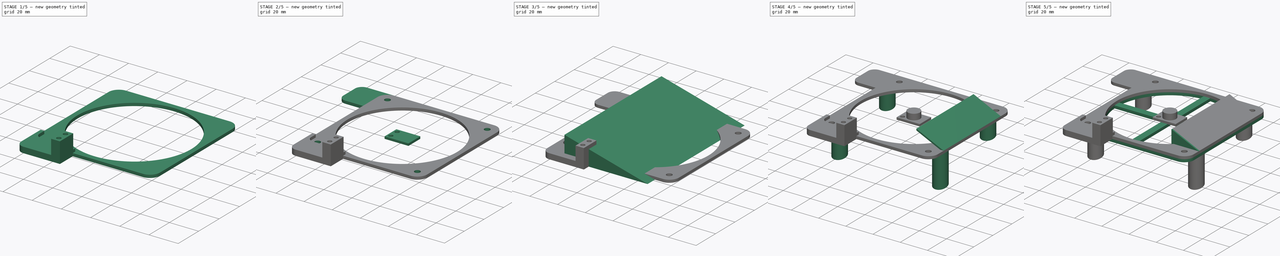
[diagram: build sequence overview — one tinted view per stage of 5, left to right]
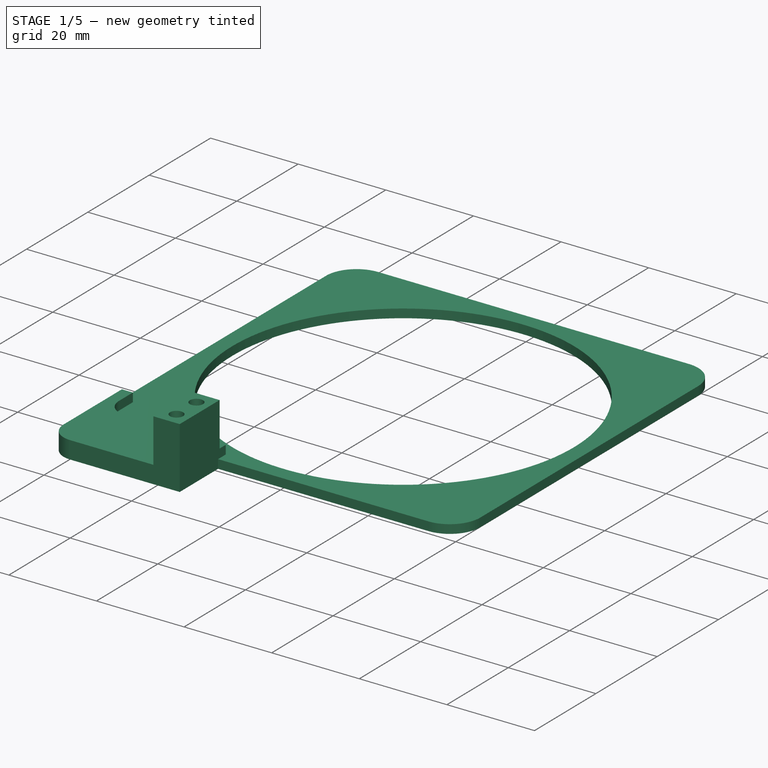
[diagram: stage 1 of 5 — iso view after this stage's code; geometry added in this stage tinted green]
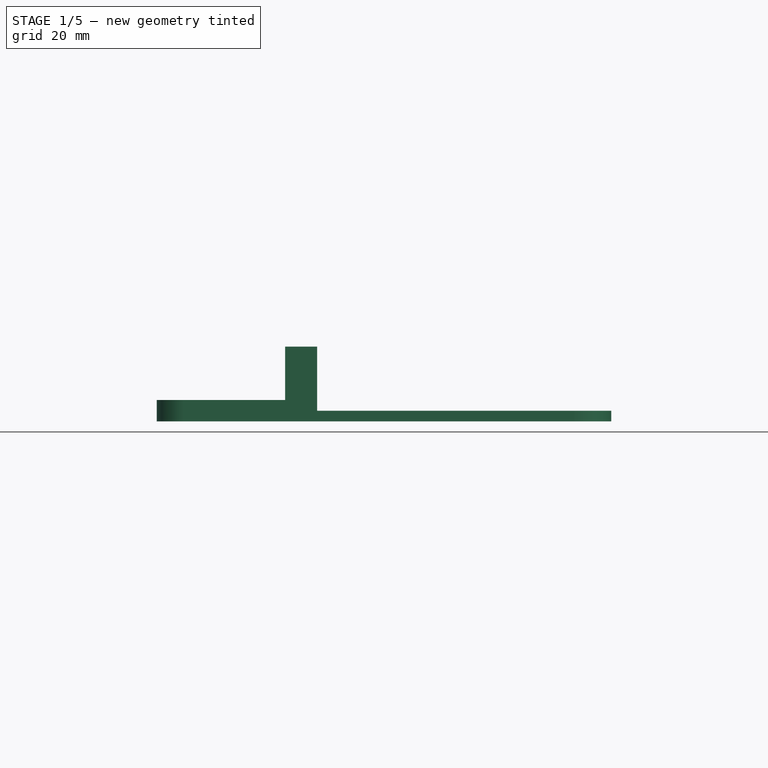
[diagram: stage 1 of 5 — front view after this stage's code; geometry added in this stage tinted green]
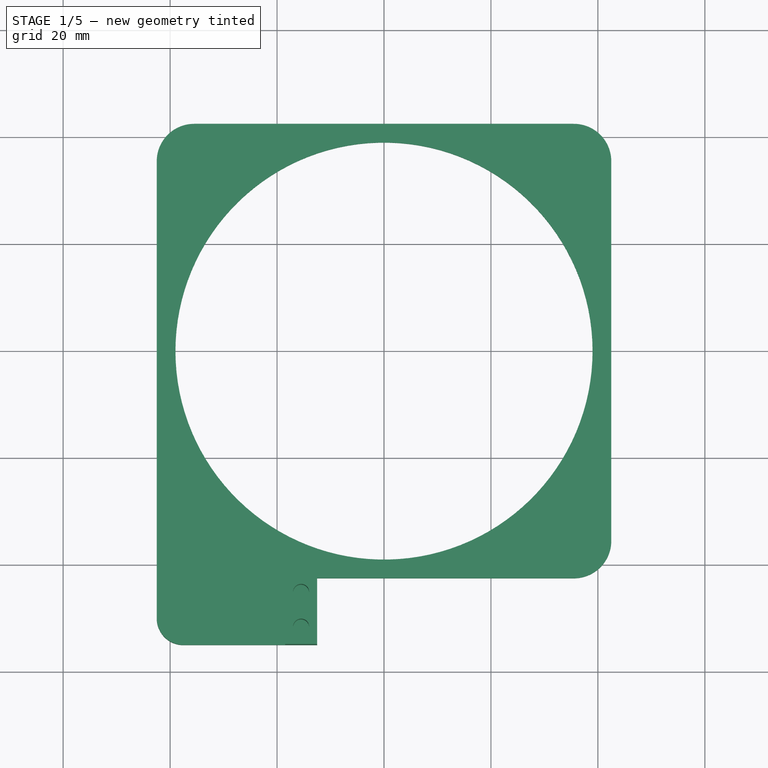
[diagram: stage 1 of 5 — top view after this stage's code; geometry added in this stage tinted green]
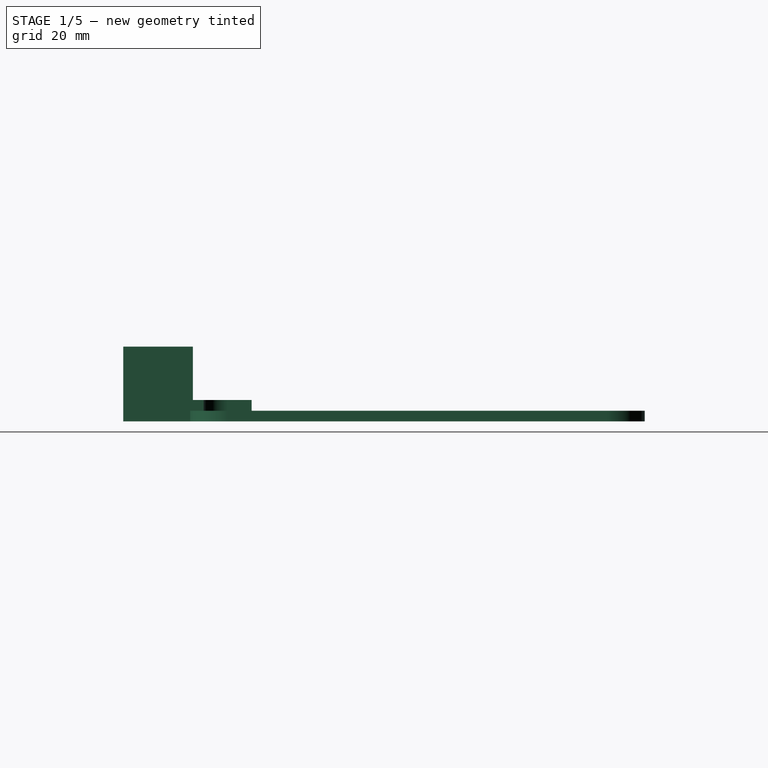
[diagram: stage 1 of 5 — right view after this stage's code; geometry added in this stage tinted green]
FCSTD DOCUMENT  (FreeCAD 1.0R39109 (Git))
Label: Fan8-slant
License: All rights reserved
LicenseURL: http://en.wikipedia.org/wiki/All_rights_reserved
objects: Sketcher::SketchObject×14, PartDesign::Pad×13, PartDesign::Body×6, PartDesign::Boolean×1, PartDesign::AdditiveCylinder×1, PartDesign::Pocket×1, PartDesign::LinearPattern×1
note: 83 computed .brp shape members not serialized (recipe doc carries the construction recipe); baked Part::Feature solids carry a one-line shape summary decoded from their .brp

FEATURE [Sketcher::SketchObject] Sketch002
  ArcFitTolerance = 1e-06
  AttachmentSupport = -> [XZ_Plane001]
  FullyConstrained = true
  MakeInternals = false
  MapMode = 5
  Placement = pos=(0,0,0) rot=(1,0,0;1.5708rad)
  sketch-geometry (4):
    g0: LineSegment StartX=22.5 StartY=11.3262 StartZ=0 EndX=42.5 EndY=2 EndZ=0
    g1: LineSegment StartX=22.5 StartY=10.1262 StartZ=0 EndX=42.5 EndY=0.8 EndZ=0
    g2: LineSegment StartX=22.5 StartY=11.3262 StartZ=0 EndX=22.5 EndY=10.1262 EndZ=0
    g3: LineSegment StartX=42.5 StartY=0.8 StartZ=0 EndX=42.5 EndY=2 EndZ=0
  constraints (12):
    c: Parallel(g0,g1)
    c: DistanceY(g1,g0) = 1.2
    c: DistanceX(g-1,g0) = 42.5
    c: Coincident(g2,g0)
    c: Coincident(g2,g1)
    c: Vertical(g2)
    c: Coincident(g3,g0)
    c: DistanceX(g0,g0) = 20
    c: Coincident(g1,g3)
    c: Vertical(g3)
    c: DistanceY(g-1,g0) = 2
    c: Angle(g0,g-1) = 0.436332
FEATURE [Sketcher::SketchObject] Sketch003
  ArcFitTolerance = 1e-06
  AttachmentSupport = -> [XY_Plane001]
  FullyConstrained = true
  MakeInternals = false
  MapMode = 5
  sketch-geometry (12):
    g0: LineSegment [constr] StartX=-35.5 StartY=35.5 StartZ=0 EndX=-35.5 EndY=-35.5 EndZ=0
    g1: LineSegment [constr] StartX=-35.5 StartY=-35.5 StartZ=0 EndX=35.5 EndY=-35.5 EndZ=0
    g2: LineSegment [constr] StartX=35.5 StartY=-35.5 StartZ=0 EndX=35.5 EndY=35.5 EndZ=0
    g3: LineSegment [constr] StartX=35.5 StartY=35.5 StartZ=0 EndX=-35.5 EndY=35.5 EndZ=0
    g4: LineSegment StartX=-42.5 StartY=35.5 StartZ=0 EndX=-42.5 EndY=-42.5 EndZ=0
    g5: LineSegment StartX=-42.5 StartY=-42.5 StartZ=0 EndX=35.5 EndY=-42.5 EndZ=0
    g6: LineSegment StartX=42.5 StartY=-35.5 StartZ=0 EndX=42.5 EndY=35.5 EndZ=0
    g7: LineSegment StartX=35.5 StartY=42.5 StartZ=0 EndX=-35.5 EndY=42.5 EndZ=0
    g8: ArcOfCircle CenterX=-35.5 CenterY=35.5 CenterZ=0 NormalX=0 NormalY=0 NormalZ=1 AngleXU=0 Radius=7 StartAngle=1.5708 EndAngle=3.14159
    g9: ArcOfCircle CenterX=35.5 CenterY=35.5 CenterZ=0 NormalX=0 NormalY=0 NormalZ=1 AngleXU=0 Radius=7 StartAngle=-3.9551e-12 EndAngle=1.5708
    g10: ArcOfCircle CenterX=35.5 CenterY=-35.5 CenterZ=0 NormalX=0 NormalY=0 NormalZ=1 AngleXU=0 Radius=7 StartAngle=4.71239 EndAngle=6.28319
    g11: Circle CenterX=0 CenterY=0 CenterZ=0 NormalX=0 NormalY=0 NormalZ=1 AngleXU=0 Radius=39
  constraints (28):
    c: Coincident(g0,g1)
    c: Coincident(g1,g2)
    c: Coincident(g2,g3)
    c: Coincident(g3,g0)
    c: Vertical(g0)
    c: Vertical(g2)
    c: Horizontal(g1)
    c: Horizontal(g3)
    c: DistanceX(g3,g3) = 71
    c: DistanceY(g2,g2) = 71
    c: Symmetric(g2,g0,g-1)
    c: Vertical(g4)
    c: Vertical(g6)
    c: Horizontal(g5)
    c: Horizontal(g7)
    c: Coincident(g8,g0)
    c: Coincident(g9,g2)
    c: Coincident(g10,g1)
    c: Tangent(g9,g7) = -1.5708
    c: Tangent(g9,g6) = -1.5708
    c: Tangent(g10,g6) = -1.5708
    c: Tangent(g8,g7) = -1.5708
    c: Tangent(g8,g4) = -1.5708
    c: Tangent(g10,g5) = -1.5708
    c: Radius(g9) = 7
    c: Coincident(g11,g-1)
    c: Radius(g11) = 39
    c: Coincident(g4,g5)
FEATURE [PartDesign::Pad] Pad002
  Direction = (0,0,1)
  Length = 2
  Length2 = 10
  Profile = -> Sketch003
  ReferenceAxis = -> Sketch003 [N_Axis]
  Suppressed = false
  Type = 0
FEATURE [PartDesign::Body] Body004  label="Sensor"
  AllowCompound = false
  Group = -> [Sketch008,Pad008,Cylinder]
  Origin = -> Origin004
  Placement = pos=(-9.5,-48.5,16) rot=(0,0,1;0rad)
  Tip = -> Cylinder
FEATURE [Sketcher::SketchObject] Sketch009
  ArcFitTolerance = 1e-06
  AttachmentSupport = -> [XY_Plane001]
  FullyConstrained = true
  MakeInternals = false
  MapMode = 5
  sketch-geometry (8):
    g0: LineSegment StartX=-42.5 StartY=-31 StartZ=0 EndX=-42.5 EndY=-50 EndZ=0
    g1: LineSegment StartX=-37.5 StartY=-55 StartZ=0 EndX=-12.5 EndY=-55 EndZ=0
    g2: LineSegment StartX=-12.5 StartY=-55 StartZ=0 EndX=-12.5 EndY=-40 EndZ=0
    g3: LineSegment StartX=-12.5 StartY=-40 StartZ=0 EndX=-35.5 EndY=-40 EndZ=0
    g4: ArcOfCircle CenterX=-37.5 CenterY=-50 CenterZ=0 NormalX=0 NormalY=0 NormalZ=1 AngleXU=0 Radius=5 StartAngle=3.14159 EndAngle=4.71239
    g5: ArcOfCircle CenterX=-35.5 CenterY=-35.5 CenterZ=0 NormalX=0 NormalY=0 NormalZ=1 AngleXU=0 Radius=4.5 StartAngle=3.14159 EndAngle=4.71239
    g6: LineSegment StartX=-42.5 StartY=-31 StartZ=0 EndX=-40 EndY=-31 EndZ=0
    g7: LineSegment StartX=-40 StartY=-31 StartZ=0 EndX=-40 EndY=-35.5 EndZ=0
  constraints (22):
    c: Coincident(g1,g2)
    c: Coincident(g2,g3)
    c: Vertical(g0)
    c: Vertical(g2)
    c: Horizontal(g1)
    c: Horizontal(g3)
    c: DistanceX(g0) = -42.5
    c: DistanceX(g0,g1) = 30
    c: DistanceY(g2,g2) = 15
    c: Radius(g4) = 5
    c: Tangent(g4,g1) = -1.5708
    c: Tangent(g4,g0) = -1.5708
    c: DistanceY(g2,g-1) = 40
    c: Coincident(g6,g0)
    c: Horizontal(g6)
    c: Coincident(g7,g6)
    c: Vertical(g7)
    c: Tangent(g3,g5) = 1.5708
    c: Tangent(g7,g5) = -1.5708
    c: DistanceX(g6,g6) = 2.5
    c: Radius(g5) = 4.5
    c: DistanceY(g7,g7) = 4.5
FEATURE [PartDesign::Pad] Pad009
  BaseFeature = -> Pad002
  Direction = (0,0,1)
  Length = 4
  Length2 = 10
  Profile = -> Sketch009
  ReferenceAxis = -> Sketch009 [N_Axis]
  Suppressed = false
  Type = 0
FEATURE [PartDesign::Body] Body005  label="test"
  AllowCompound = false
  Group = -> [Sketch010,Pad010]
  Origin = -> Origin005
  Placement = pos=(0,0,2) rot=(0,0,1;0rad)
  Tip = -> Pad010
FEATURE [Sketcher::SketchObject] Sketch011
  ArcFitTolerance = 1e-06
  AttachmentOffset = pos=(0,0,4) rot=(0,0,1;0rad)
  AttachmentSupport = -> [XY_Plane001]
  FullyConstrained = true
  MakeInternals = false
  MapMode = 5
  Placement = pos=(0,0,4) rot=(0,0,1;0rad)
  sketch-geometry (8):
    g0: LineSegment StartX=-12.5 StartY=-42 StartZ=0 EndX=-18.5 EndY=-42 EndZ=0
    g1: LineSegment StartX=-18.5 StartY=-42 StartZ=0 EndX=-18.5 EndY=-55 EndZ=0
    g2: LineSegment StartX=-18.5 StartY=-55 StartZ=0 EndX=-12.5 EndY=-55 EndZ=0
    g3: LineSegment StartX=-12.5 StartY=-55 StartZ=0 EndX=-12.5 EndY=-42 EndZ=0
    g4: LineSegment [constr] StartX=-15.5 StartY=-45.25 StartZ=0 EndX=-15.5 EndY=-51.75 EndZ=0
    g5: GeomPoint [constr] X=-15.5 Y=-48.5 Z=0
    g6: Circle CenterX=-15.5 CenterY=-45.25 CenterZ=0 NormalX=0 NormalY=0 NormalZ=1 AngleXU=0 Radius=1.5
    g7: Circle CenterX=-15.5 CenterY=-51.75 CenterZ=0 NormalX=0 NormalY=0 NormalZ=1 AngleXU=0 Radius=1.5
  constraints (20):
    c: Coincident(g0,g1)
    c: Coincident(g1,g2)
    c: Coincident(g2,g3)
    c: Coincident(g3,g0)
    c: Horizontal(g0)
    c: Horizontal(g2)
    c: Vertical(g1)
    c: Vertical(g3)
    c: DistanceX(g0,g0) = 6
    c: DistanceY(g1,g1) = 13
    c: DistanceX(g0) = -12.5
    c: DistanceY(g0) = -42
    c: Vertical(g4)
    c: Symmetric(g4,g4,g5)
    c: Symmetric(g0,g1,g5)
    c: DistanceY(g4,g4) = 6.5
    c: Coincident(g6,g4)
    c: Coincident(g7,g4)
    c: Equal(g7,g6)
    c: Diameter(g7) = 3
FEATURE [PartDesign::Pad] Pad011
  BaseFeature = -> Pad009
  Direction = (0,0,1)
  Length = 10
  Length2 = 10
  Profile = -> Sketch011
  ReferenceAxis = -> Sketch011 [N_Axis]
  Suppressed = false
  Type = 0
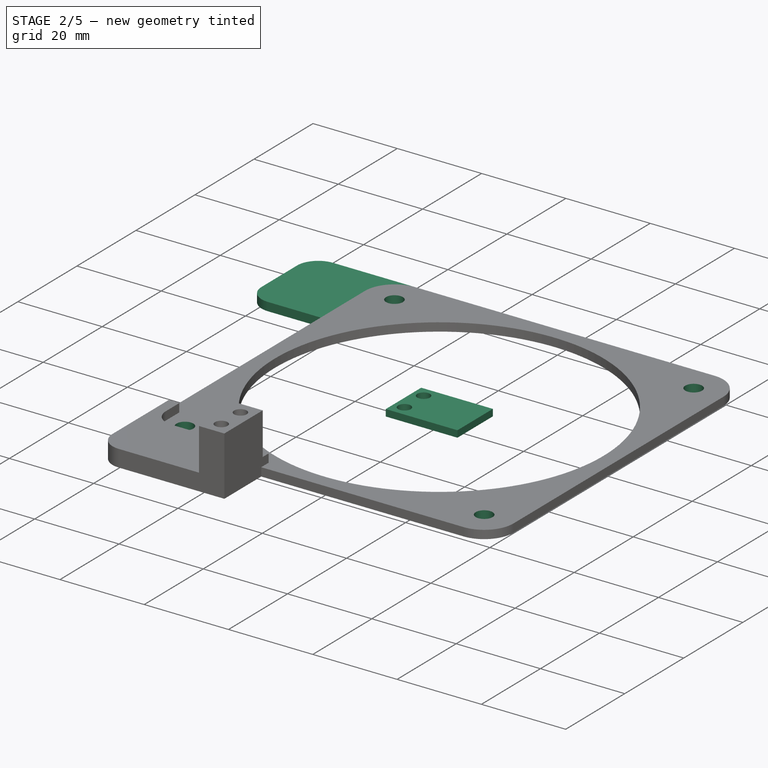
[diagram: stage 2 of 5 — iso view after this stage's code; geometry added in this stage tinted green]
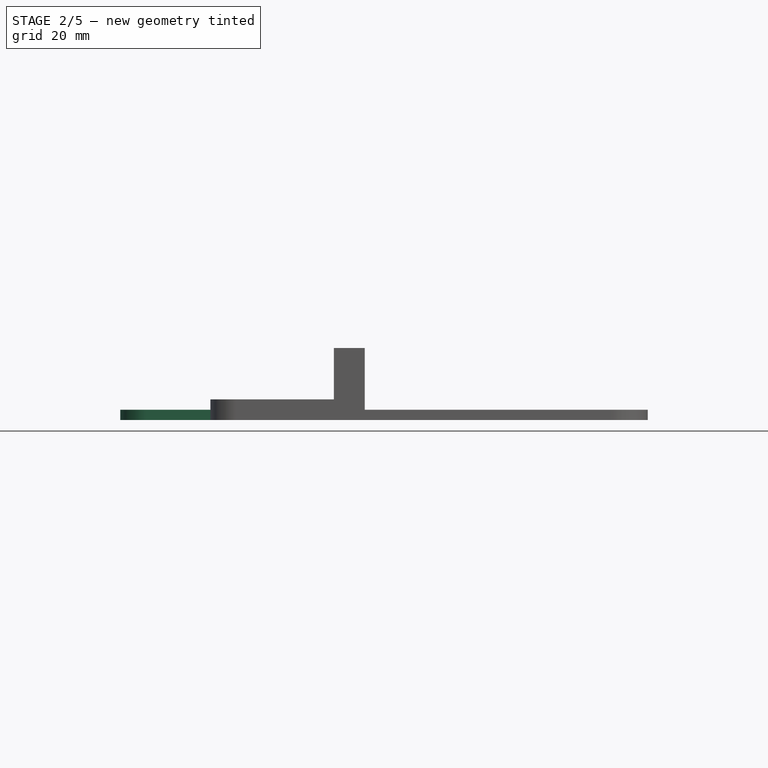
[diagram: stage 2 of 5 — front view after this stage's code; geometry added in this stage tinted green]
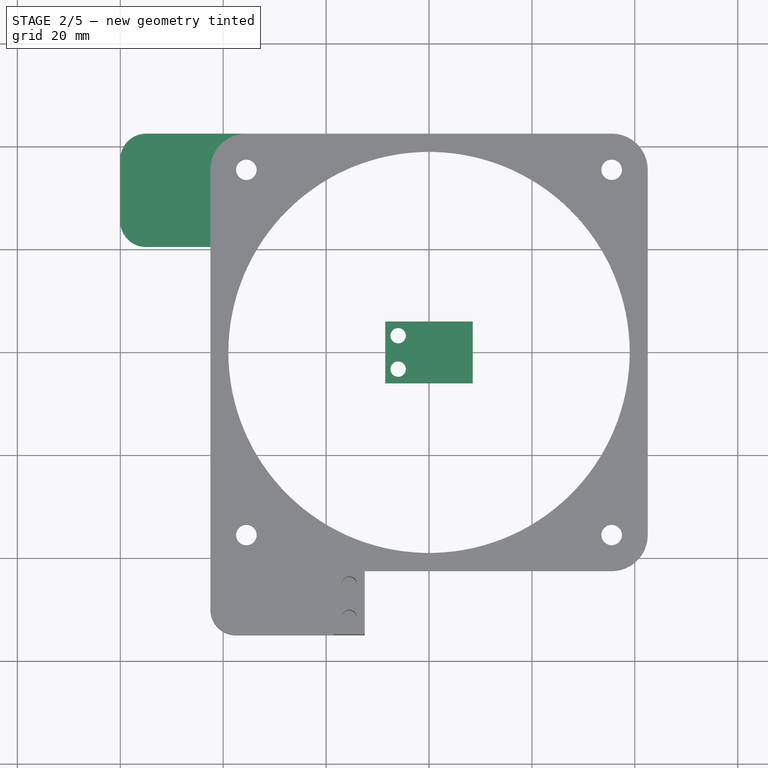
[diagram: stage 2 of 5 — top view after this stage's code; geometry added in this stage tinted green]
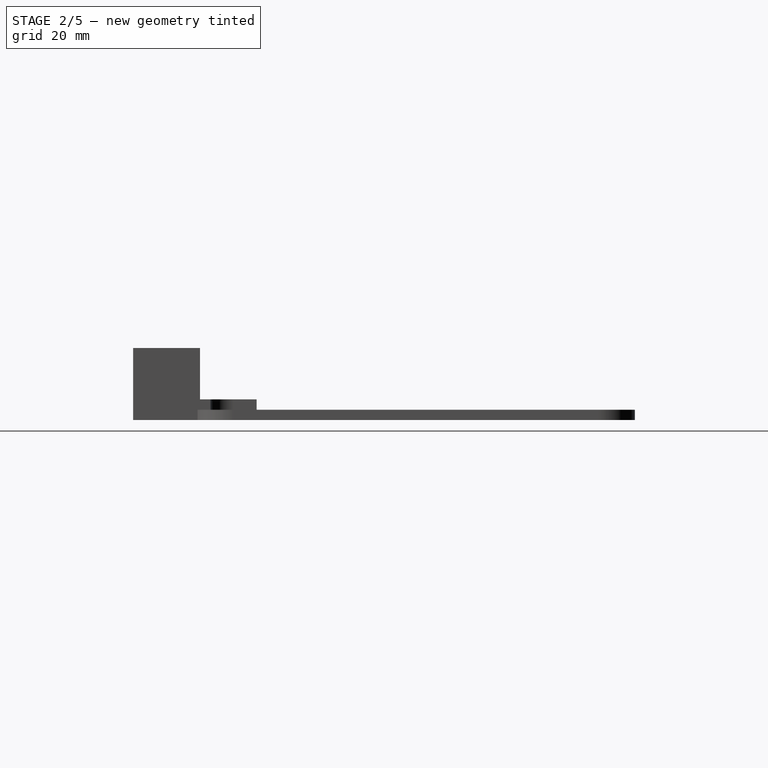
[diagram: stage 2 of 5 — right view after this stage's code; geometry added in this stage tinted green]
FEATURE [PartDesign::Body] Body
  AllowCompound = false
  Group = -> [Sketch,Pad,Sketch001,Pad001,Boolean]
  Origin = -> Origin
  Placement = pos=(0,0,-4) rot=(0,0,1;1.5708rad)
  Tip = -> Boolean
FEATURE [Sketcher::SketchObject] Sketch008
  ArcFitTolerance = 1e-06
  AttachmentSupport = -> [XY_Plane004]
  FullyConstrained = true
  MakeInternals = false
  MapMode = 5
  sketch-geometry (10):
    g0: LineSegment StartX=-8.5 StartY=6 StartZ=0 EndX=-8.5 EndY=-6 EndZ=0
    g1: LineSegment StartX=-8.5 StartY=-6 StartZ=0 EndX=8.5 EndY=-6 EndZ=0
    g2: LineSegment StartX=8.5 StartY=-6 StartZ=0 EndX=8.5 EndY=6 EndZ=0
    g3: LineSegment StartX=8.5 StartY=6 StartZ=0 EndX=-8.5 EndY=6 EndZ=0
    g4: GeomPoint [constr] X=0 Y=0 Z=0
    g5: LineSegment [constr] StartX=-6 StartY=3.25 StartZ=0 EndX=-6 EndY=-3.25 EndZ=0
    g6: Circle CenterX=-6 CenterY=3.25 CenterZ=0 NormalX=0 NormalY=0 NormalZ=1 AngleXU=0 Radius=1.5
    g7: Circle CenterX=-6 CenterY=-3.25 CenterZ=0 NormalX=0 NormalY=0 NormalZ=1 AngleXU=0 Radius=1.5
    g8: LineSegment [constr] StartX=-6 StartY=3.25 StartZ=0 EndX=0 EndY=0 EndZ=0
    g9: LineSegment [constr] StartX=-6 StartY=-3.25 StartZ=0 EndX=0 EndY=0 EndZ=0
  constraints (24):
    c: Coincident(g0,g1)
    c: Coincident(g1,g2)
    c: Coincident(g2,g3)
    c: Coincident(g3,g0)
    c: Vertical(g0)
    c: Vertical(g2)
    c: Horizontal(g1)
    c: Horizontal(g3)
    c: DistanceX(g3,g3) = 17
    c: DistanceY(g2,g2) = 12
    c: Symmetric(g0,g2,g4)
    c: Vertical(g5)
    c: DistanceY(g5,g5) = 6.5
    c: Coincident(g6,g5)
    c: Coincident(g7,g5)
    c: Equal(g7,g6)
    c: Diameter(g6) = 3
    c: DistanceX(g0,g5) = 2.5
    c: Coincident(g8,g5)
    c: Coincident(g8,g4)
    c: Coincident(g9,g5)
    c: Coincident(g9,g4)
    c: Equal(g8,g9)
    c: Coincident(g4,g-1)
FEATURE [PartDesign::Pad] Pad008
  Direction = (0,0,1)
  Length = 1.6
  Length2 = 10
  Profile = -> Sketch008
  ReferenceAxis = -> Sketch008 [N_Axis]
  Suppressed = false
  Type = 0
FEATURE [Sketcher::SketchObject] Sketch010
  ArcFitTolerance = 1e-06
  AttachmentSupport = -> [XY_Plane005]
  FullyConstrained = true
  MakeInternals = false
  MapMode = 5
  sketch-geometry (8):
    g0: LineSegment StartX=-42.5 StartY=-42 StartZ=0 EndX=-42.5 EndY=-49 EndZ=0
    g1: LineSegment StartX=-37.5 StartY=-54 StartZ=0 EndX=-32.5 EndY=-54 EndZ=0
    g2: LineSegment StartX=-32.5 StartY=-54 StartZ=0 EndX=-32.5 EndY=-42 EndZ=0
    g3: LineSegment StartX=-32.5 StartY=-42 StartZ=0 EndX=-42.5 EndY=-42 EndZ=0
    g4: ArcOfCircle CenterX=-37.5 CenterY=-49 CenterZ=0 NormalX=0 NormalY=0 NormalZ=1 AngleXU=0 Radius=5 StartAngle=3.14159 EndAngle=4.71239
    g5: Circle CenterX=-35 CenterY=-51 CenterZ=0 NormalX=0 NormalY=0 NormalZ=1 AngleXU=0 Radius=1.5
    g6: Circle CenterX=-35 CenterY=-45 CenterZ=0 NormalX=0 NormalY=0 NormalZ=1 AngleXU=0 Radius=1.5
    g7: LineSegment [constr] StartX=-35 StartY=-45 StartZ=0 EndX=-35 EndY=-51 EndZ=0
  constraints (22):
    c: Coincident(g1,g2)
    c: Coincident(g2,g3)
    c: Coincident(g3,g0)
    c: Vertical(g0)
    c: Vertical(g2)
    c: Horizontal(g1)
    c: Horizontal(g3)
    c: DistanceX(g0) = -42.5
    c: DistanceY(g0) = -42
    c: DistanceX(g0,g1) = 10
    c: DistanceY(g2,g2) = 12
    c: Radius(g4) = 5
    c: Tangent(g4,g1) = -1.5708
    c: Tangent(g4,g0) = -1.5708
    c: Coincident(g7,g6)
    c: Coincident(g7,g5)
    c: Vertical(g7)
    c: DistanceY(g7,g7) = 6
    c: Equal(g6,g5)
    c: Diameter(g5) = 3
    c: DistanceX(g5,g1) = 2.5
    c: DistanceY(g1,g5) = 3
FEATURE [PartDesign::Pad] Pad010
  Direction = (0,0,1)
  Length = 2
  Length2 = 10
  Profile = -> Sketch010
  ReferenceAxis = -> Sketch010 [N_Axis]
  Suppressed = false
  Type = 0
FEATURE [Sketcher::SketchObject] Sketch012
  ArcFitTolerance = 1e-06
  AttachmentSupport = -> [XY_Plane001]
  FullyConstrained = true
  MakeInternals = false
  MapMode = 5
  sketch-geometry (6):
    g0: LineSegment StartX=-60 StartY=37.5 StartZ=0 EndX=-60 EndY=25.5 EndZ=0
    g1: LineSegment StartX=-55 StartY=20.5 StartZ=0 EndX=-35.5 EndY=20.5 EndZ=0
    g2: LineSegment StartX=-35.5 StartY=20.5 StartZ=0 EndX=-35.5 EndY=42.5 EndZ=0
    g3: LineSegment StartX=-35.5 StartY=42.5 StartZ=0 EndX=-55 EndY=42.5 EndZ=0
    g4: ArcOfCircle CenterX=-55 CenterY=37.5 CenterZ=0 NormalX=0 NormalY=0 NormalZ=1 AngleXU=0 Radius=5 StartAngle=1.5708 EndAngle=3.14159
    g5: ArcOfCircle CenterX=-55 CenterY=25.5 CenterZ=0 NormalX=0 NormalY=0 NormalZ=1 AngleXU=0 Radius=5 StartAngle=3.14159 EndAngle=4.71239
  constraints (16):
    c: Coincident(g1,g2)
    c: Coincident(g2,g3)
    c: Vertical(g0)
    c: Vertical(g2)
    c: Horizontal(g1)
    c: Horizontal(g3)
    c: DistanceY(g-1,g2) = 42.5
    c: DistanceY(g2,g2) = 22
    c: DistanceX(g2,g-1) = 35.5
    c: Equal(g4,g5)
    c: Radius(g4) = 5
    c: Tangent(g4,g3) = -1.5708
    c: Tangent(g4,g0) = -1.5708
    c: Tangent(g5,g0) = -1.5708
    c: Tangent(g5,g1) = -1.5708
    c: DistanceX(g0,g-1) = 60
FEATURE [Sketcher::SketchObject] Sketch013
  ArcFitTolerance = 1e-06
  AttachmentSupport = -> [XY_Plane001]
  FullyConstrained = true
  MakeInternals = false
  MapMode = 5
  sketch-geometry (9):
    g0: LineSegment [constr] StartX=-35.5 StartY=35.5 StartZ=0 EndX=-35.5 EndY=-35.5 EndZ=0
    g1: LineSegment [constr] StartX=-35.5 StartY=-35.5 StartZ=0 EndX=35.5 EndY=-35.5 EndZ=0
    g2: LineSegment [constr] StartX=35.5 StartY=-35.5 StartZ=0 EndX=35.5 EndY=35.5 EndZ=0
    g3: LineSegment [constr] StartX=35.5 StartY=35.5 StartZ=0 EndX=-35.5 EndY=35.5 EndZ=0
    g4: Circle CenterX=-35.5 CenterY=35.5 CenterZ=0 NormalX=0 NormalY=0 NormalZ=1 AngleXU=0 Radius=2
    g5: Circle CenterX=35.5 CenterY=35.5 CenterZ=0 NormalX=0 NormalY=0 NormalZ=1 AngleXU=0 Radius=2
    g6: Circle CenterX=35.5 CenterY=-35.5 CenterZ=0 NormalX=0 NormalY=0 NormalZ=1 AngleXU=0 Radius=2
    g7: Circle CenterX=-35.5 CenterY=-35.5 CenterZ=0 NormalX=0 NormalY=0 NormalZ=1 AngleXU=0 Radius=2
    g8: Circle CenterX=0 CenterY=0 CenterZ=0 NormalX=0 NormalY=0 NormalZ=1 AngleXU=0 Radius=39
  constraints (21):
    c: Coincident(g0,g1)
    c: Coincident(g1,g2)
    c: Coincident(g2,g3)
    c: Coincident(g3,g0)
    c: Vertical(g0)
    c: Vertical(g2)
    c: Horizontal(g1)
    c: Horizontal(g3)
    c: DistanceX(g3,g3) = 71
    c: DistanceY(g2,g2) = 71
    c: Symmetric(g2,g0,g-1)
    c: Coincident(g4,g0)
    c: Coincident(g5,g2)
    c: Coincident(g6,g1)
    c: Coincident(g7,g0)
    c: Equal(g7,g4)
    c: Equal(g4,g5)
    c: Equal(g5,g6)
    c: Radius(g5) = 2
    c: Coincident(g8,g-1)
    c: Radius(g8) = 39
FEATURE [PartDesign::Pad] Pad012
  BaseFeature = -> Pad011
  Direction = (0,0,1)
  Length = 2
  Length2 = 10
  Profile = -> Sketch012
  ReferenceAxis = -> Sketch012 [N_Axis]
  Suppressed = false
  Type = 0
FEATURE [PartDesign::Pocket] Pocket
  BaseFeature = -> Pad012
  Direction = (0,0,-1)
  Length = 5
  Length2 = 5
  Midplane = true
  Profile = -> Sketch013
  ReferenceAxis = -> Sketch013 [N_Axis]
  Suppressed = false
  Type = 1
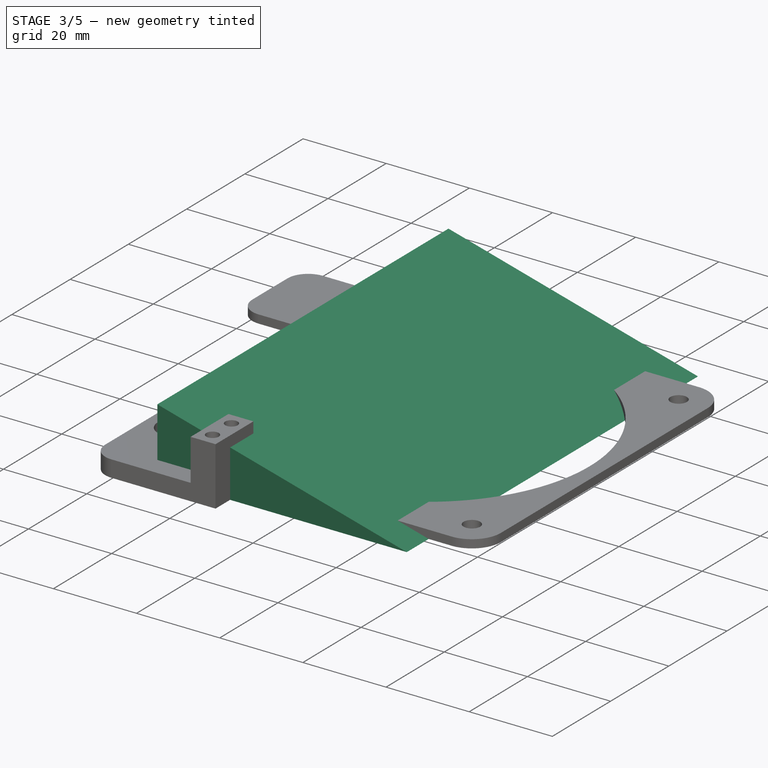
[diagram: stage 3 of 5 — iso view after this stage's code; geometry added in this stage tinted green]
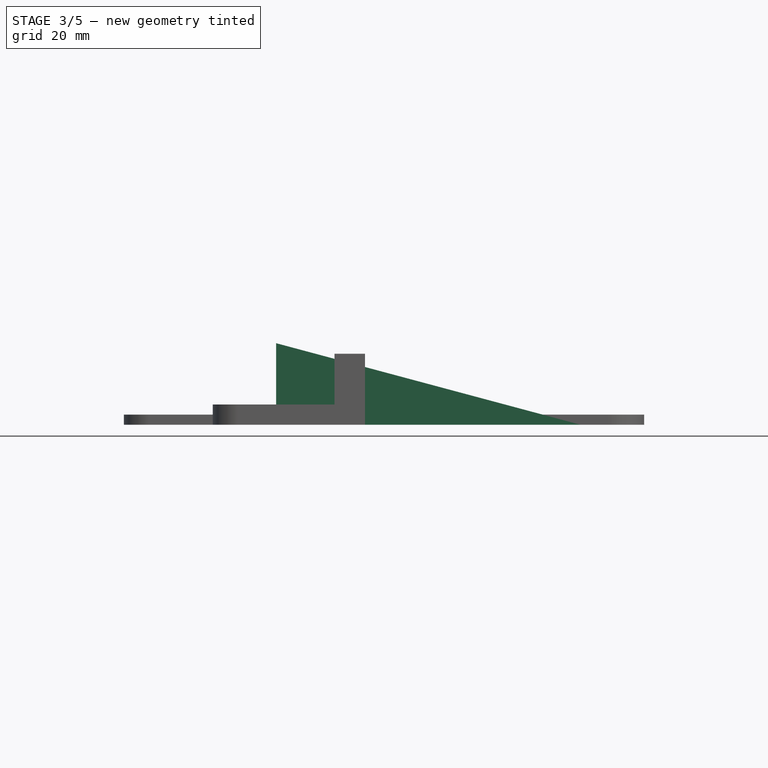
[diagram: stage 3 of 5 — front view after this stage's code; geometry added in this stage tinted green]
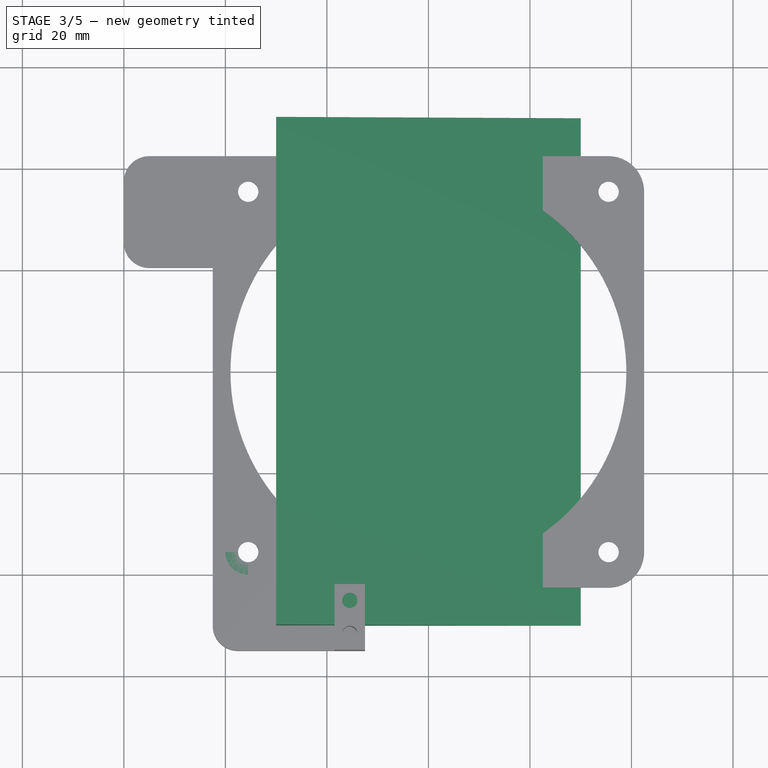
[diagram: stage 3 of 5 — top view after this stage's code; geometry added in this stage tinted green]
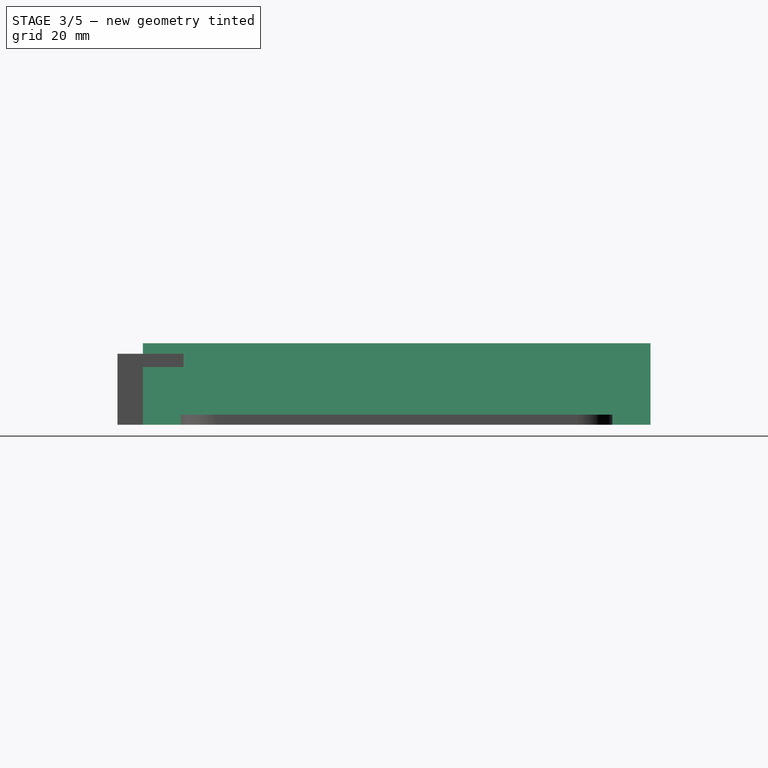
[diagram: stage 3 of 5 — right view after this stage's code; geometry added in this stage tinted green]
FEATURE [Sketcher::SketchObject] Sketch
  ArcFitTolerance = 1e-06
  AttachmentSupport = -> [XY_Plane]
  FullyConstrained = true
  MakeInternals = false
  MapMode = 5
  sketch-geometry (17):
    g0: LineSegment [constr] StartX=-35.5 StartY=35.5 StartZ=0 EndX=-35.5 EndY=-35.5 EndZ=0
    g1: LineSegment [constr] StartX=-35.5 StartY=-35.5 StartZ=0 EndX=35.5 EndY=-35.5 EndZ=0
    g2: LineSegment [constr] StartX=35.5 StartY=-35.5 StartZ=0 EndX=35.5 EndY=35.5 EndZ=0
    g3: LineSegment [constr] StartX=35.5 StartY=35.5 StartZ=0 EndX=-35.5 EndY=35.5 EndZ=0
    g4: Circle CenterX=-35.5 CenterY=35.5 CenterZ=0 NormalX=0 NormalY=0 NormalZ=1 AngleXU=0 Radius=2
    g5: Circle CenterX=35.5 CenterY=35.5 CenterZ=0 NormalX=0 NormalY=0 NormalZ=1 AngleXU=0 Radius=2
    g6: Circle CenterX=35.5 CenterY=-35.5 CenterZ=0 NormalX=0 NormalY=0 NormalZ=1 AngleXU=0 Radius=2
    g7: Circle CenterX=-35.5 CenterY=-35.5 CenterZ=0 NormalX=0 NormalY=0 NormalZ=1 AngleXU=0 Radius=2
    g8: LineSegment StartX=-42.5 StartY=35.5 StartZ=0 EndX=-42.5 EndY=-35.5 EndZ=0
    g9: LineSegment StartX=-35.5 StartY=-42.5 StartZ=0 EndX=35.5 EndY=-42.5 EndZ=0
    g10: LineSegment StartX=42.5 StartY=-35.5 StartZ=0 EndX=42.5 EndY=35.5 EndZ=0
    g11: LineSegment StartX=35.5 StartY=42.5 StartZ=0 EndX=-35.5 EndY=42.5 EndZ=0
    g12: ArcOfCircle CenterX=-35.5 CenterY=35.5 CenterZ=0 NormalX=0 NormalY=0 NormalZ=1 AngleXU=0 Radius=7 StartAngle=1.5708 EndAngle=3.14159
    g13: ArcOfCircle CenterX=35.5 CenterY=35.5 CenterZ=0 NormalX=0 NormalY=0 NormalZ=1 AngleXU=0 Radius=7 StartAngle=1e-16 EndAngle=1.5708
    g14: ArcOfCircle CenterX=35.5 CenterY=-35.5 CenterZ=0 NormalX=0 NormalY=0 NormalZ=1 AngleXU=0 Radius=7 StartAngle=4.71239 EndAngle=6.28319
    g15: ArcOfCircle CenterX=-35.5 CenterY=-35.5 CenterZ=0 NormalX=0 NormalY=0 NormalZ=1 AngleXU=0 Radius=7 StartAngle=3.1416 EndAngle=4.71239
    g16: Circle CenterX=0 CenterY=0 CenterZ=0 NormalX=0 NormalY=0 NormalZ=1 AngleXU=0 Radius=39
  constraints (38):
    c: Coincident(g0,g1)
    c: Coincident(g1,g2)
    c: Coincident(g2,g3)
    c: Coincident(g3,g0)
    c: Vertical(g0)
    c: Vertical(g2)
    c: Horizontal(g1)
    c: Horizontal(g3)
    c: DistanceX(g3,g3) = 71
    c: DistanceY(g2,g2) = 71
    c: Symmetric(g2,g0,g-1)
    c: Coincident(g4,g0)
    c: Coincident(g5,g2)
    c: Coincident(g6,g1)
    c: Coincident(g7,g0)
    c: Equal(g7,g4)
    c: Equal(g4,g5)
    c: Equal(g5,g6)
    c: Radius(g5) = 2
    c: Vertical(g8)
    c: Vertical(g10)
    c: Horizontal(g9)
    c: Horizontal(g11)
    c: Tangent(g13,g11) = -1.5708
    c: Tangent(g13,g10) = -1.5708
    c: Tangent(g14,g10) = -1.5708
    c: Tangent(g12,g11) = -1.5708
    c: Tangent(g12,g8) = -1.5708
    c: Tangent(g14,g9) = -1.5708
    c: Tangent(g15,g9) = -1.5708
    c: Radius(g13) = 7
    c: Radius(g16) = 39
    c: Coincident(g8,g15)
    c: Coincident(g16,g-1)
    c: Coincident(g13,g2)
    c: Coincident(g12,g0)
    c: Coincident(g15,g0)
    c: Coincident(g14,g1)
FEATURE [PartDesign::Pad] Pad
  Direction = (0,0,1)
  Length = 2
  Length2 = 10
  Profile = -> Sketch
  ReferenceAxis = -> Sketch [N_Axis]
  Suppressed = false
  Type = 0
FEATURE [PartDesign::Body] Body002  label="Inter"
  AllowCompound = false
  Group = -> [Sketch004,Pad004,Sketch005,Pad005]
  Origin = -> Origin002
  Tip = -> Pad005
FEATURE [Sketcher::SketchObject] Sketch006
  ArcFitTolerance = 1e-06
  AttachmentOffset = pos=(0,0,-30) rot=(0,0,1;0rad)
  AttachmentSupport = -> [XZ_Plane001]
  FullyConstrained = true
  MakeInternals = false
  MapMode = 5
  Placement = pos=(0,30,-6.7e-15) rot=(1,0,0;1.5708rad)
  sketch-geometry (4):
    g0: LineSegment StartX=22.5 StartY=11.3262 StartZ=0 EndX=42.5 EndY=2 EndZ=0
    g1: LineSegment StartX=22.5 StartY=11.3262 StartZ=0 EndX=22.5 EndY=0 EndZ=0
    g2: LineSegment StartX=42.5 StartY=2 StartZ=0 EndX=42.5 EndY=0 EndZ=0
    g3: LineSegment StartX=22.5 StartY=0 StartZ=0 EndX=42.5 EndY=0 EndZ=0
  constraints (12):
    c: DistanceY(g-1,g0) = 2
    c: DistanceX(g-1,g0) = 42.5
    c: DistanceX(g0,g0) = 20
    c: Coincident(g1,g0)
    c: Vertical(g1)
    c: Coincident(g2,g0)
    c: Vertical(g2)
    c: Coincident(g3,g1)
    c: Coincident(g3,g2)
    c: Horizontal(g3)
    c: DistanceY(g-1,g1) = 0
    c: Angle(g0,g3) = 0.436332
FEATURE [Sketcher::SketchObject] Sketch007
  ArcFitTolerance = 1e-06
  AttachmentSupport = -> [XZ_Plane003]
  FullyConstrained = true
  MakeInternals = false
  MapMode = 5
  Placement = pos=(0,0,0) rot=(1,0,0;1.5708rad)
  sketch-geometry (4):
    g0: LineSegment StartX=-30 StartY=16.077 StartZ=0 EndX=-30 EndY=0 EndZ=0
    g1: LineSegment StartX=-30 StartY=0 StartZ=0 EndX=30 EndY=0 EndZ=0
    g2: LineSegment StartX=30 StartY=0 StartZ=0 EndX=-30 EndY=16.077 EndZ=0
    g3: GeomPoint [constr] X=0 Y=0 Z=0
  constraints (10):
    c: Coincident(g0,g1)
    c: Coincident(g2,g0)
    c: Vertical(g0)
    c: Horizontal(g1)
    c: Symmetric(g1,g1,g3)
    c: PointOnObject(g3,g-2)
    c: DistanceX(g1,g1) = 60
    c: DistanceY(g3,g-1) = 0
    c: Coincident(g2,g1)
    c: Angle(g2,g1) = 0.261799
FEATURE [PartDesign::Pad] Pad007
  Direction = (0,-1,2e-16)
  Length = 100
  Length2 = 10
  Midplane = true
  Placement = pos=(0,0,0) rot=(1,0,0;1.5708rad)
  Profile = -> Sketch007
  ReferenceAxis = -> Sketch007 [N_Axis]
  Suppressed = false
  Type = 0
FEATURE [PartDesign::AdditiveCylinder] Cylinder
  Angle = 360
  AttacherType = Attacher::AttachEngine3D
  AttachmentSupport = -> [XY_Plane004]
  BaseFeature = -> Pad008
  FirstAngle = 0
  Height = 6
  MapMode = 5
  Radius = 4.5
  SecondAngle = 0
  Suppressed = false
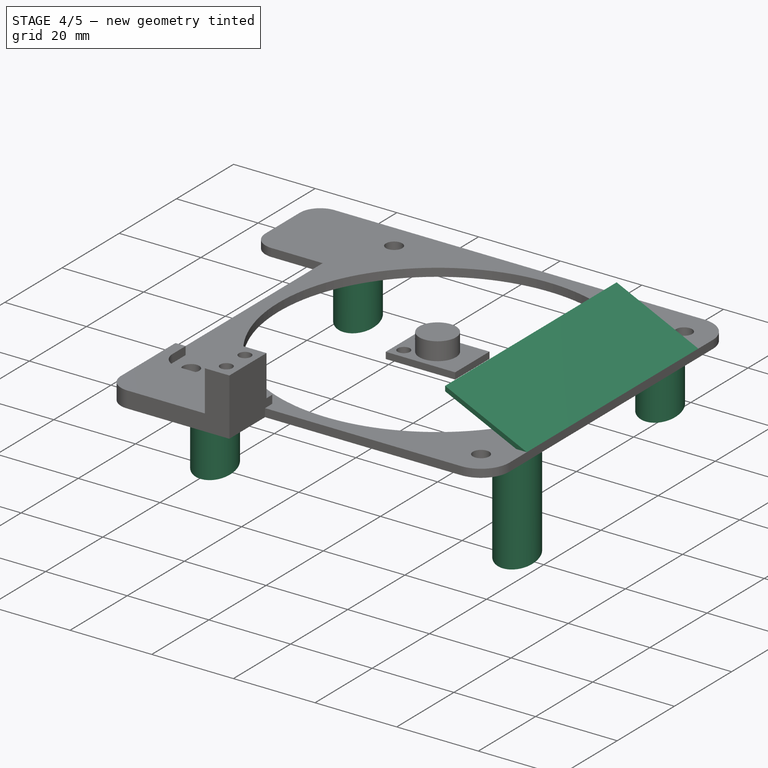
[diagram: stage 4 of 5 — iso view after this stage's code; geometry added in this stage tinted green]
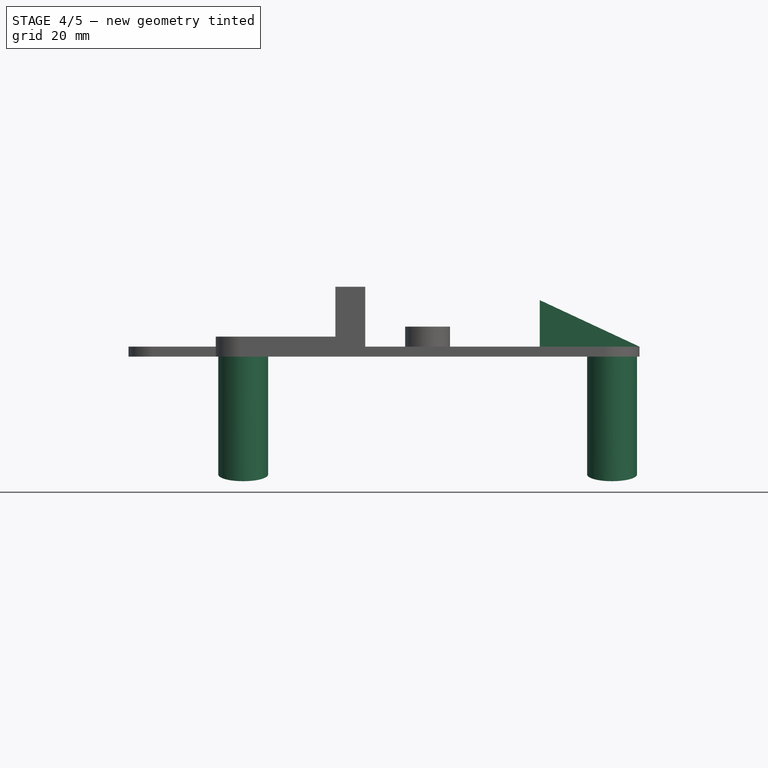
[diagram: stage 4 of 5 — front view after this stage's code; geometry added in this stage tinted green]
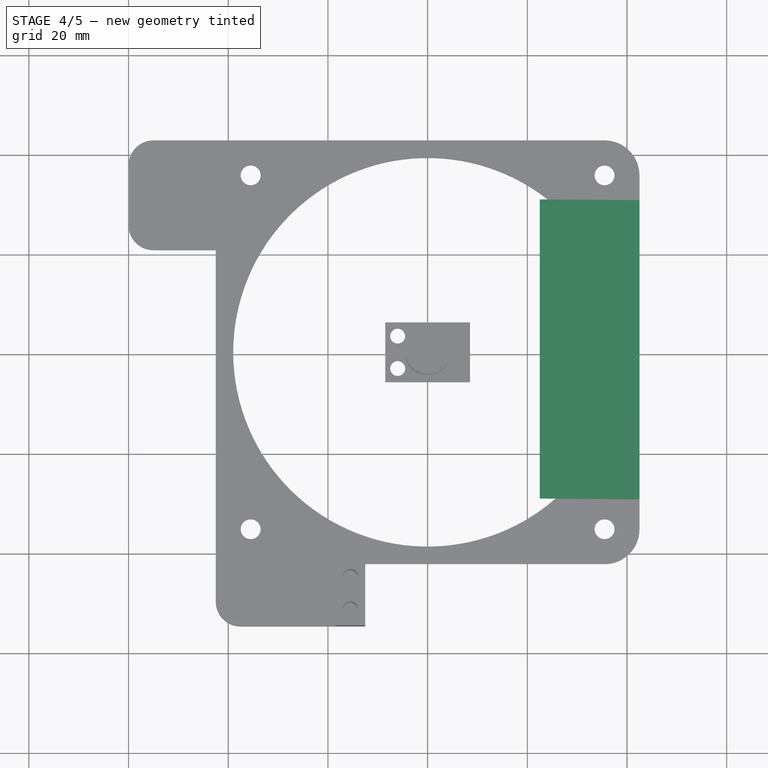
[diagram: stage 4 of 5 — top view after this stage's code; geometry added in this stage tinted green]
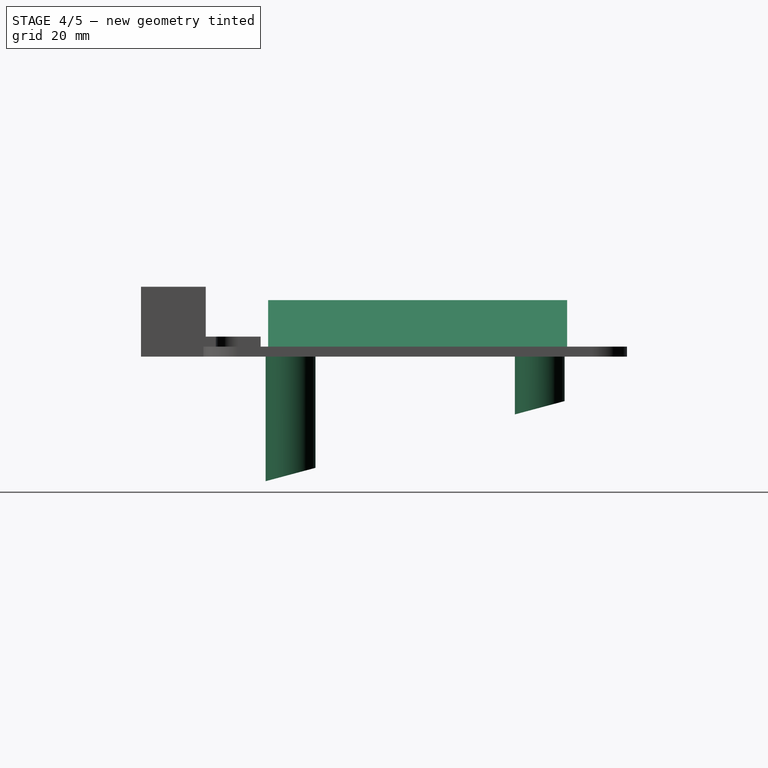
[diagram: stage 4 of 5 — right view after this stage's code; geometry added in this stage tinted green]
FEATURE [Sketcher::SketchObject] Sketch001
  ArcFitTolerance = 1e-06
  AttachmentSupport = -> [XY_Plane]
  FullyConstrained = true
  MakeInternals = false
  MapMode = 5
  sketch-geometry (8):
    g0: LineSegment [constr] StartX=-37 StartY=25 StartZ=0 EndX=-37 EndY=-25 EndZ=0
    g1: LineSegment [constr] StartX=-37 StartY=-25 StartZ=0 EndX=37 EndY=-25 EndZ=0
    g2: LineSegment [constr] StartX=37 StartY=-25 StartZ=0 EndX=37 EndY=25 EndZ=0
    g3: LineSegment [constr] StartX=37 StartY=25 StartZ=0 EndX=-37 EndY=25 EndZ=0
    g4: Circle CenterX=-37 CenterY=25 CenterZ=0 NormalX=0 NormalY=0 NormalZ=1 AngleXU=0 Radius=5
    g5: Circle CenterX=37 CenterY=25 CenterZ=0 NormalX=0 NormalY=0 NormalZ=1 AngleXU=0 Radius=5
    g6: Circle CenterX=37 CenterY=-25 CenterZ=0 NormalX=0 NormalY=0 NormalZ=1 AngleXU=0 Radius=5
    g7: Circle CenterX=-37 CenterY=-25 CenterZ=0 NormalX=0 NormalY=0 NormalZ=1 AngleXU=0 Radius=5
  constraints (19):
    c: Coincident(g0,g1)
    c: Coincident(g1,g2)
    c: Coincident(g2,g3)
    c: Coincident(g3,g0)
    c: Vertical(g0)
    c: Vertical(g2)
    c: Horizontal(g1)
    c: Horizontal(g3)
    c: DistanceX(g3,g3) = 74
    c: DistanceY(g2,g2) = 50
    c: Symmetric(g2,g0,g-1)
    c: Coincident(g4,g0)
    c: Coincident(g5,g2)
    c: Coincident(g6,g1)
    c: Coincident(g7,g0)
    c: Equal(g4,g5)
    c: Equal(g5,g6)
    c: Equal(g6,g7)
    c: Radius(g5) = 5
FEATURE [PartDesign::Pad] Pad001
  BaseFeature = -> Pad
  Direction = (0,0,1)
  Length = 25
  Length2 = 10
  Profile = -> Sketch001
  ReferenceAxis = -> Sketch001 [N_Axis]
  Reversed = true
  Suppressed = false
  Type = 0
FEATURE [PartDesign::Body] Body003  label="Slant"
  AllowCompound = false
  Group = -> [Sketch007,Pad007]
  Origin = -> Origin003
  Placement = pos=(0,0,-25) rot=(0,0,1;4.71239rad)
  Tip = -> Pad007
FEATURE [PartDesign::Boolean] Boolean
  BaseFeature = -> Pad001
  Group = -> [Body003]
  Suppressed = false
  Type = 1
  UsePlacement = true
FEATURE [PartDesign::Pad] Pad003
  BaseFeature = -> Pocket
  Direction = (0,-1,2e-16)
  Length = 59
  Length2 = 10
  Midplane = true
  Profile = -> Sketch002
  ReferenceAxis = -> Sketch002 [N_Axis]
  Suppressed = false
  Type = 0
FEATURE [PartDesign::Pad] Pad006
  BaseFeature = -> Pad003
  Direction = (0,-1,2e-16)
  Length = 1
  Length2 = 10
  Midplane = true
  Profile = -> Sketch006
  ReferenceAxis = -> Sketch006 [N_Axis]
  Suppressed = false
  Type = 0
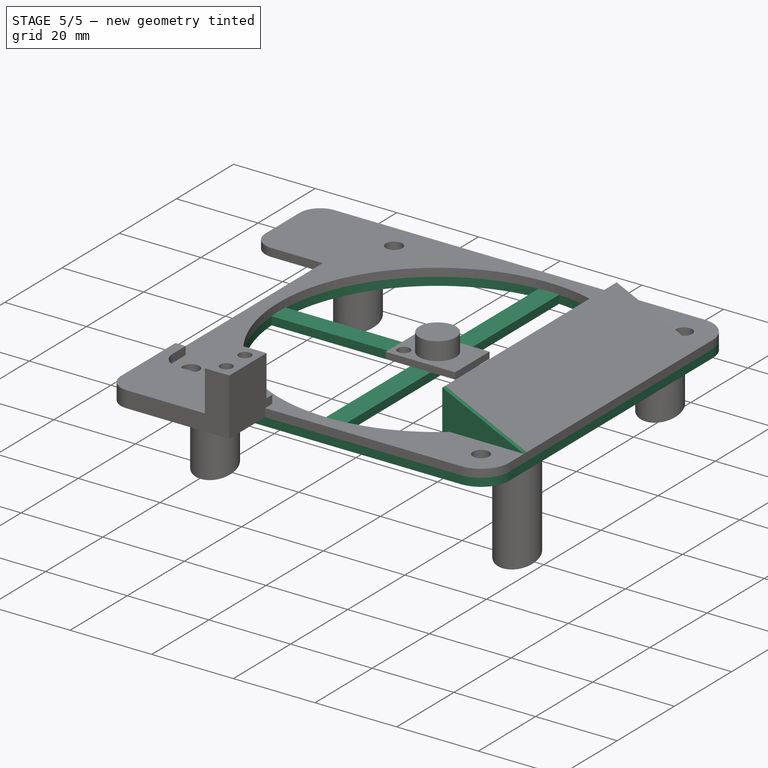
[diagram: stage 5 of 5 — iso view after this stage's code; geometry added in this stage tinted green]
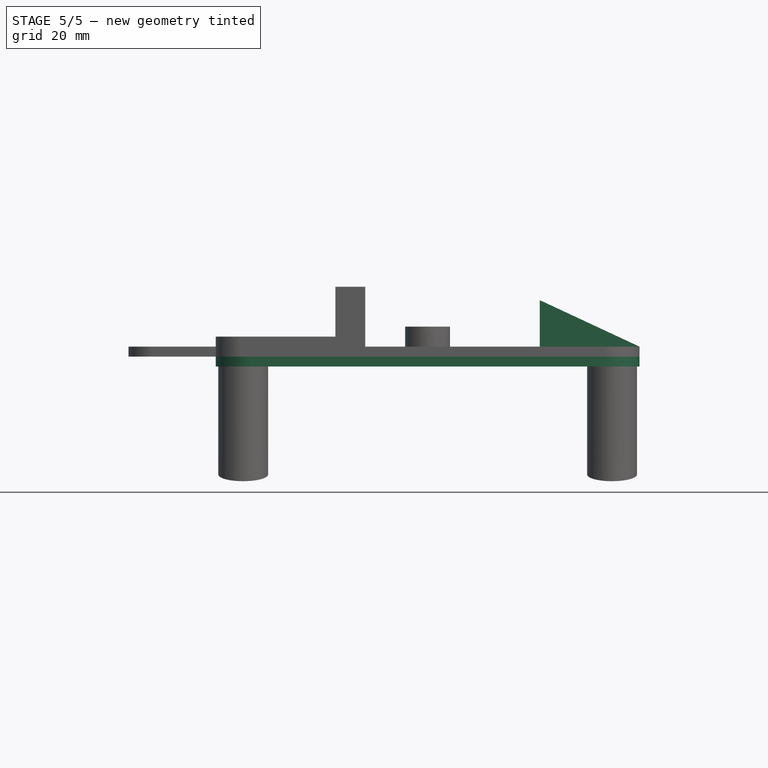
[diagram: stage 5 of 5 — front view after this stage's code; geometry added in this stage tinted green]
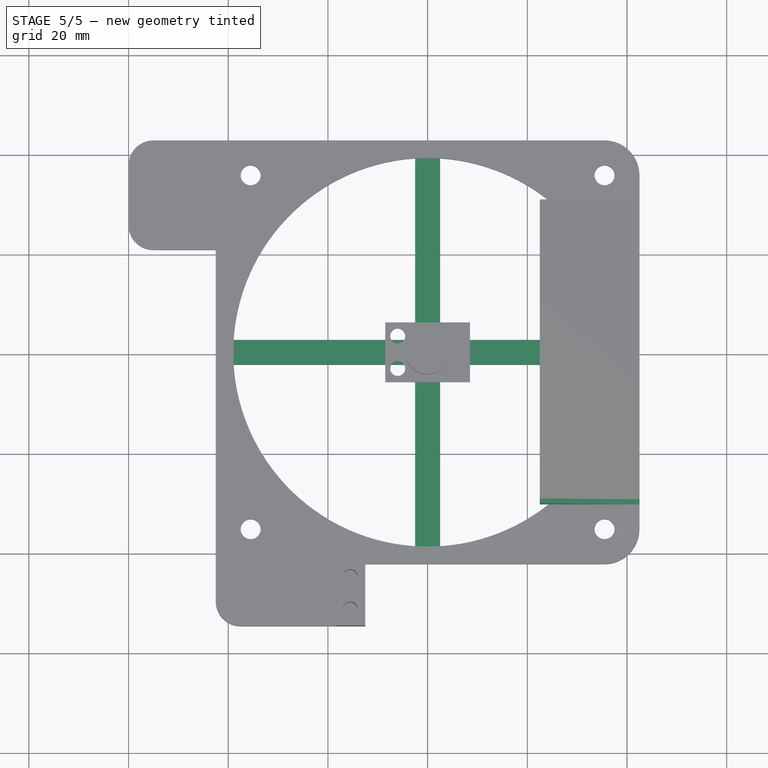
[diagram: stage 5 of 5 — top view after this stage's code; geometry added in this stage tinted green]
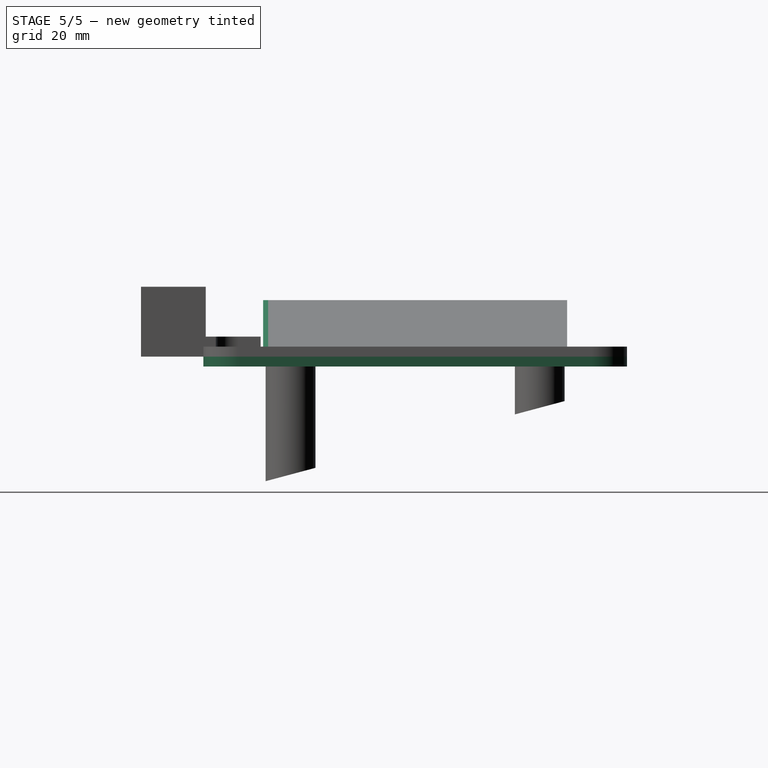
[diagram: stage 5 of 5 — right view after this stage's code; geometry added in this stage tinted green]
FEATURE [Sketcher::SketchObject] Sketch004
  ArcFitTolerance = 1e-06
  AttachmentSupport = -> [XY_Plane002]
  FullyConstrained = true
  MakeInternals = false
  MapMode = 5
  sketch-geometry (36):
    g0: LineSegment [constr] StartX=-35.5 StartY=35.5 StartZ=0 EndX=-35.5 EndY=-35.5 EndZ=0
    g1: LineSegment [constr] StartX=-35.5 StartY=-35.5 StartZ=0 EndX=35.5 EndY=-35.5 EndZ=0
    g2: LineSegment [constr] StartX=35.5 StartY=-35.5 StartZ=0 EndX=35.5 EndY=35.5 EndZ=0
    g3: LineSegment [constr] StartX=35.5 StartY=35.5 StartZ=0 EndX=-35.5 EndY=35.5 EndZ=0
    g4: Circle CenterX=-35.5 CenterY=35.5 CenterZ=0 NormalX=0 NormalY=0 NormalZ=1 AngleXU=0 Radius=2
    g5: Circle CenterX=35.5 CenterY=35.5 CenterZ=0 NormalX=0 NormalY=0 NormalZ=1 AngleXU=0 Radius=2
    g6: Circle CenterX=35.5 CenterY=-35.5 CenterZ=0 NormalX=0 NormalY=0 NormalZ=1 AngleXU=0 Radius=2
    g7: Circle CenterX=-35.5 CenterY=-35.5 CenterZ=0 NormalX=0 NormalY=0 NormalZ=1 AngleXU=0 Radius=2
    g8: LineSegment StartX=-42.5 StartY=35.5 StartZ=0 EndX=-42.5 EndY=-35.5 EndZ=0
    g9: LineSegment StartX=-35.5 StartY=-42.5 StartZ=0 EndX=35.5 EndY=-42.5 EndZ=0
    g10: LineSegment StartX=42.5 StartY=-35.5 StartZ=0 EndX=42.5 EndY=35.5 EndZ=0
    g11: LineSegment StartX=35.5 StartY=42.5 StartZ=0 EndX=-35.5 EndY=42.5 EndZ=0
    g12: ArcOfCircle CenterX=-35.5 CenterY=35.5 CenterZ=0 NormalX=0 NormalY=0 NormalZ=1 AngleXU=0 Radius=7 StartAngle=1.5708 EndAngle=3.14159
    g13: ArcOfCircle CenterX=35.5 CenterY=35.5 CenterZ=0 NormalX=0 NormalY=0 NormalZ=1 AngleXU=0 Radius=7 StartAngle=0 EndAngle=1.5708
    g14: ArcOfCircle CenterX=35.5 CenterY=-35.5 CenterZ=0 NormalX=0 NormalY=0 NormalZ=1 AngleXU=0 Radius=7 StartAngle=4.71239 EndAngle=6.28319
    g15: ArcOfCircle CenterX=-35.5 CenterY=-35.5 CenterZ=0 NormalX=0 NormalY=0 NormalZ=1 AngleXU=0 Radius=7 StartAngle=3.14159 EndAngle=4.71239
    g16: LineSegment [constr] StartX=-35.5 StartY=35.5 StartZ=0 EndX=-35.5 EndY=-35.5 EndZ=0
    g17: LineSegment [constr] StartX=-35.5 StartY=-35.5 StartZ=0 EndX=35.5 EndY=-35.5 EndZ=0
    g18: LineSegment [constr] StartX=35.5 StartY=-35.5 StartZ=0 EndX=35.5 EndY=35.5 EndZ=0
    g19: LineSegment [constr] StartX=35.5 StartY=35.5 StartZ=0 EndX=-35.5 EndY=35.5 EndZ=0
    g20: LineSegment StartX=-2.5 StartY=38.9198 StartZ=0 EndX=-2.5 EndY=2.5 EndZ=0
    g21: LineSegment StartX=2.5 StartY=2.5 StartZ=0 EndX=2.5 EndY=38.9198 EndZ=0
    g22: LineSegment StartX=2.5 StartY=-2.5 StartZ=0 EndX=38.9198 EndY=-2.5 EndZ=0
    g23: LineSegment StartX=38.9198 StartY=2.5 StartZ=0 EndX=2.5 EndY=2.5 EndZ=0
    g24: LineSegment StartX=-2.5 StartY=-2.5 StartZ=0 EndX=-2.5 EndY=-38.9198 EndZ=0
    g25: LineSegment StartX=2.5 StartY=-38.9198 StartZ=0 EndX=2.5 EndY=-2.5 EndZ=0
    g26: LineSegment StartX=-2.5 StartY=2.5 StartZ=0 EndX=-38.9198 EndY=2.5 EndZ=0
    g27: LineSegment StartX=-38.9198 StartY=-2.5 StartZ=0 EndX=-2.5 EndY=-2.5 EndZ=0
    g28: LineSegment [constr] StartX=-2.5 StartY=2.5 StartZ=0 EndX=-2.5 EndY=-2.5 EndZ=0
    g29: LineSegment [constr] StartX=-2.5 StartY=-2.5 StartZ=0 EndX=2.5 EndY=-2.5 EndZ=0
    g30: LineSegment [constr] StartX=2.5 StartY=-2.5 StartZ=0 EndX=2.5 EndY=2.5 EndZ=0
    g31: LineSegment [constr] StartX=2.5 StartY=2.5 StartZ=0 EndX=-2.5 EndY=2.5 EndZ=0
    g32: ArcOfCircle CenterX=0 CenterY=0 CenterZ=0 NormalX=0 NormalY=0 NormalZ=1 AngleXU=0 Radius=39 StartAngle=4.77654 EndAngle=6.21904
    g33: ArcOfCircle CenterX=0 CenterY=0 CenterZ=0 NormalX=0 NormalY=0 NormalZ=1 AngleXU=0 Radius=39 StartAngle=3.20574 EndAngle=4.64824
    g34: ArcOfCircle CenterX=0 CenterY=0 CenterZ=0 NormalX=0 NormalY=0 NormalZ=1 AngleXU=0 Radius=39 StartAngle=1.63494 EndAngle=3.07745
    g35: ArcOfCircle CenterX=0 CenterY=0 CenterZ=0 NormalX=0 NormalY=0 NormalZ=1 AngleXU=0 Radius=39 StartAngle=0.0641465 EndAngle=1.50665
  constraints (90):
    c: Coincident(g0,g1)
    c: Coincident(g1,g2)
    c: Coincident(g2,g3)
    c: Coincident(g3,g0)
    c: Vertical(g0)
    c: Vertical(g2)
    c: Horizontal(g1)
    c: Horizontal(g3)
    c: DistanceX(g3,g3) = 71
    c: DistanceY(g2,g2) = 71
    c: Symmetric(g2,g0,g-1)
    c: Coincident(g4,g0)
    c: Coincident(g5,g2)
    c: Coincident(g6,g1)
    c: Coincident(g7,g0)
    c: Equal(g7,g4)
    c: Equal(g4,g5)
    c: Equal(g5,g6)
    c: Radius(g5) = 2
    c: Vertical(g8)
    c: Vertical(g10)
    c: Horizontal(g9)
    c: Horizontal(g11)
    c: Tangent(g13,g11) = -1.5708
    c: Tangent(g13,g10) = -1.5708
    c: Tangent(g14,g10) = -1.5708
    c: Tangent(g12,g11) = -1.5708
    c: Tangent(g12,g8) = -1.5708
    c: Tangent(g14,g9) = -1.5708
    c: Tangent(g15,g9) = -1.5708
    c: Radius(g13) = 7
    c: Coincident(g8,g15)
    c: Coincident(g16,g17)
    c: Coincident(g17,g18)
    c: Coincident(g18,g19)
    c: Coincident(g19,g16)
    c: Vertical(g16)
    c: Vertical(g18)
    c: Horizontal(g17)
    c: Horizontal(g19)
    c: Coincident(g16,g12)
    c: Coincident(g17,g14)
    c: Coincident(g13,g18)
    c: Coincident(g15,g16)
    c: DistanceX(g19,g19) = 71
    c: DistanceY(g18,g18) = 71
    c: Vertical(g20)
    c: Vertical(g21)
    c: Horizontal(g22)
    c: Horizontal(g23)
    c: Vertical(g24)
    c: Vertical(g25)
    c: Horizontal(g26)
    c: Horizontal(g27)
    c: Coincident(g26,g20)
    c: Coincident(g21,g23)
    c: Coincident(g22,g25)
    c: Coincident(g24,g27)
    c: Coincident(g28,g29)
    c: Coincident(g29,g30)
    c: Coincident(g30,g31)
    c: Coincident(g31,g28)
    c: Vertical(g28)
    c: Vertical(g30)
    c: Horizontal(g29)
    c: Horizontal(g31)
    c: Coincident(g28,g20)
    c: Coincident(g29,g22)
    c: Coincident(g21,g30)
    c: Symmetric(g20,g22,g-1)
    c: Distance(g31) = 5
    c: Distance(g30) = 5
    c: Coincident(g24,g28)
    c: Coincident(g12,g0)
    c: Coincident(g32,g-1)
    c: Coincident(g32,g22)
    c: Coincident(g32,g25)
    c: Coincident(g33,g32)
    c: Coincident(g33,g24)
    c: Coincident(g33,g27)
    c: Coincident(g34,g32)
    c: Coincident(g34,g26)
    c: Coincident(g34,g20)
    c: Equal(g34,g33)
    c: Equal(g33,g32)
    c: Coincident(g35,g32)
    c: Coincident(g35,g21)
    c: Coincident(g35,g23)
    c: Equal(g35,g33)
    c: Radius(g35) = 39
FEATURE [PartDesign::Pad] Pad004
  Direction = (0,0,1)
  Length = 2
  Length2 = 10
  Profile = -> Sketch004
  ReferenceAxis = -> Sketch004 [N_Axis]
  Reversed = true
  Suppressed = false
  Type = 0
FEATURE [Sketcher::SketchObject] Sketch005
  ArcFitTolerance = 1e-06
  AttachmentSupport = -> [XY_Plane002]
  FullyConstrained = true
  MakeInternals = false
  MapMode = 5
  sketch-geometry (12):
    g0: LineSegment [constr] StartX=-35.5 StartY=35.5 StartZ=0 EndX=-35.5 EndY=-35.5 EndZ=0
    g1: LineSegment [constr] StartX=-35.5 StartY=-35.5 StartZ=0 EndX=35.5 EndY=-35.5 EndZ=0
    g2: LineSegment [constr] StartX=35.5 StartY=-35.5 StartZ=0 EndX=35.5 EndY=35.5 EndZ=0
    g3: LineSegment [constr] StartX=35.5 StartY=35.5 StartZ=0 EndX=-35.5 EndY=35.5 EndZ=0
    g4: Circle CenterX=-35.5 CenterY=35.5 CenterZ=0 NormalX=0 NormalY=0 NormalZ=1 AngleXU=0 Radius=2
    g5: Circle CenterX=-35.5 CenterY=35.5 CenterZ=0 NormalX=0 NormalY=0 NormalZ=1 AngleXU=0 Radius=5
    g6: Circle CenterX=35.5 CenterY=35.5 CenterZ=0 NormalX=0 NormalY=0 NormalZ=1 AngleXU=0 Radius=2
    g7: Circle CenterX=35.5 CenterY=35.5 CenterZ=0 NormalX=0 NormalY=0 NormalZ=1 AngleXU=0 Radius=5
    g8: Circle CenterX=35.5 CenterY=-35.5 CenterZ=0 NormalX=0 NormalY=0 NormalZ=1 AngleXU=0 Radius=2
    g9: Circle CenterX=35.5 CenterY=-35.5 CenterZ=0 NormalX=0 NormalY=0 NormalZ=1 AngleXU=0 Radius=5
    g10: Circle CenterX=-35.5 CenterY=-35.5 CenterZ=0 NormalX=0 NormalY=0 NormalZ=1 AngleXU=0 Radius=2
    g11: Circle CenterX=-35.5 CenterY=-35.5 CenterZ=0 NormalX=0 NormalY=0 NormalZ=1 AngleXU=0 Radius=5
  constraints (27):
    c: Coincident(g0,g1)
    c: Coincident(g1,g2)
    c: Coincident(g2,g3)
    c: Coincident(g3,g0)
    c: Vertical(g0)
    c: Vertical(g2)
    c: Horizontal(g1)
    c: Horizontal(g3)
    c: Distance(g3) = 71
    c: Distance(g2) = 71
    c: Symmetric(g0,g1,g-1)
    c: Coincident(g4,g0)
    c: Coincident(g5,g0)
    c: Coincident(g6,g2)
    c: Coincident(g7,g2)
    c: Coincident(g8,g1)
    c: Coincident(g9,g1)
    c: Coincident(g10,g0)
    c: Coincident(g11,g0)
    c: Equal(g10,g4)
    c: Equal(g4,g6)
    c: Equal(g6,g8)
    c: Radius(g6) = 2
    c: Equal(g7,g9)
    c: Equal(g9,g11)
    c: Equal(g11,g5)
    c: Radius(g7) = 5
FEATURE [PartDesign::Pad] Pad005
  BaseFeature = -> Pad004
  Direction = (0,0,1)
  Length = 2
  Length2 = 10
  Profile = -> Sketch005
  ReferenceAxis = -> Sketch005 [N_Axis]
  Suppressed = false
  Type = 0
FEATURE [PartDesign::LinearPattern] LinearPattern
  BaseFeature = -> Pad006
  Direction = -> Sketch006 [N_Axis]
  Length = 60
  Mode = 0
  Occurrences = 7
  Offset = 10
  Originals = -> [Pad006]
  Suppressed = false
  TransformMode = 0
FEATURE [PartDesign::Body] Body001  label="Vent"
  AllowCompound = false
  Group = -> [Sketch002,Sketch003,Pad002,Sketch006,Sketch009,Pad009,Sketch011,Pad011,Sketch012,Sketch013,Pad012,Pocket,Pad003,Pad006,LinearPattern]
  Origin = -> Origin001
  Placement = pos=(0,0,2) rot=(0,0,1;0rad)
  Tip = -> LinearPattern
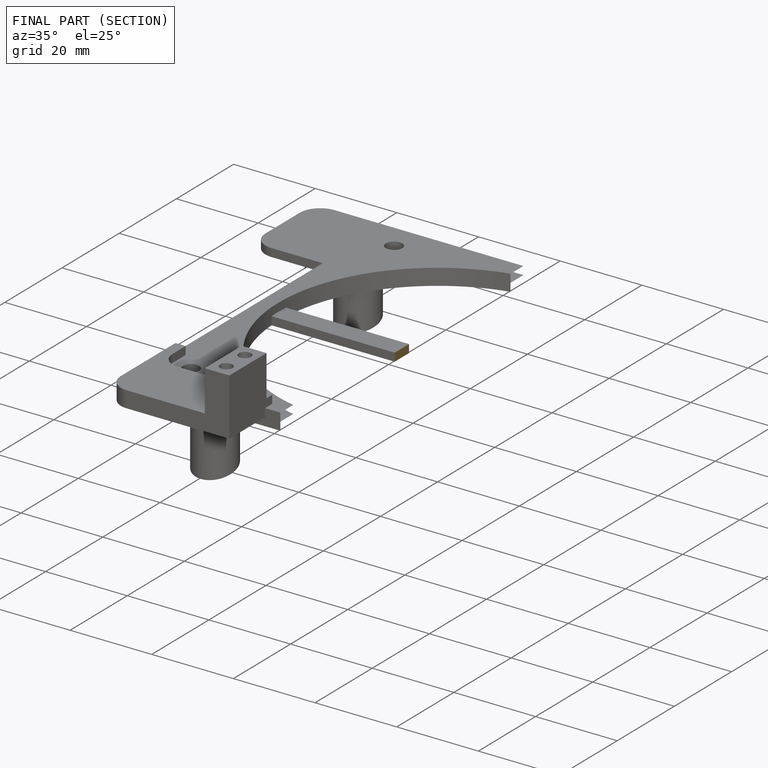
[diagram: finished part — half-section view (interior)]
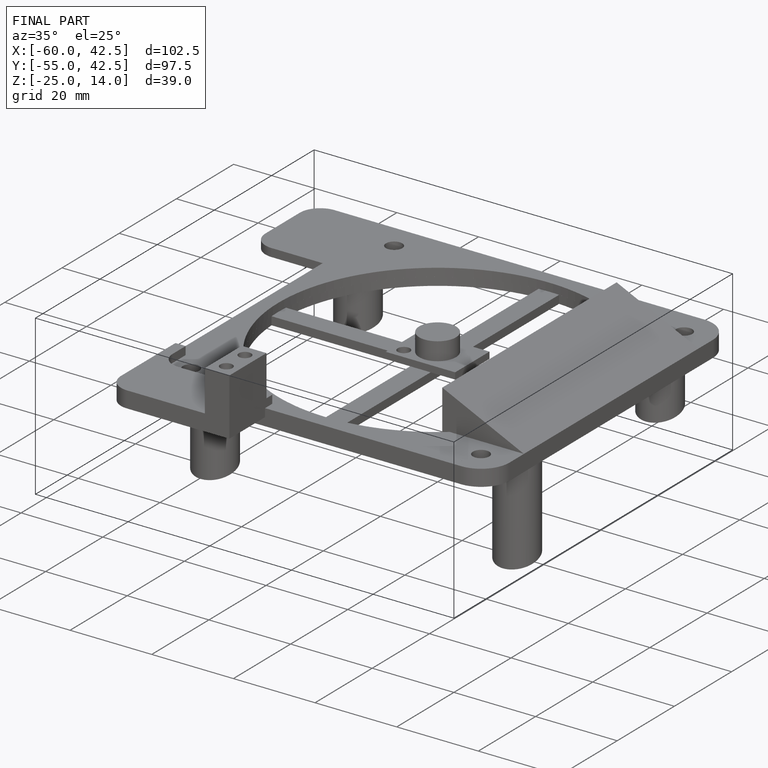
[diagram: finished part — iso view with bounding-box wireframe]
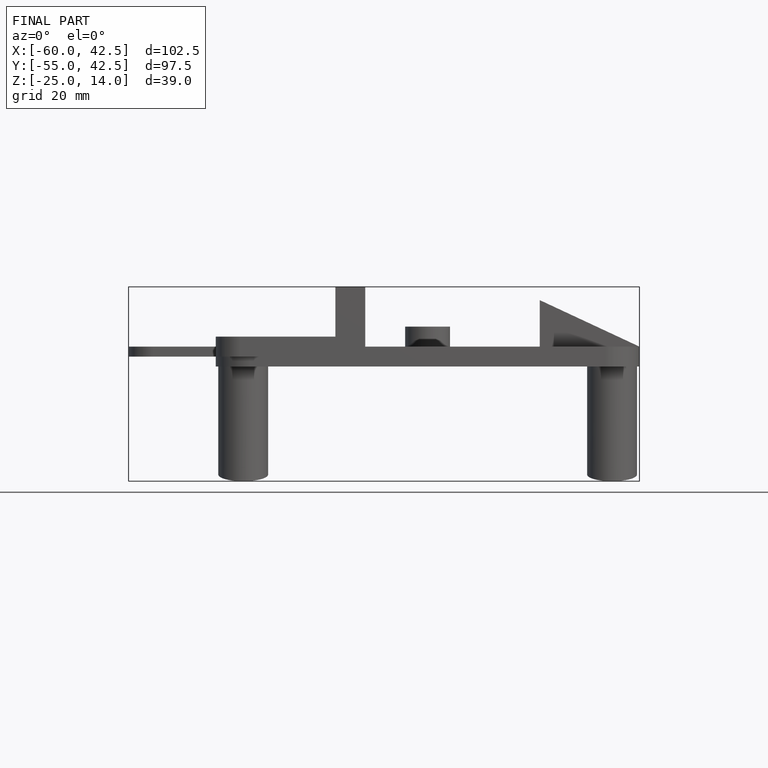
[diagram: finished part — front view with bounding-box wireframe]
